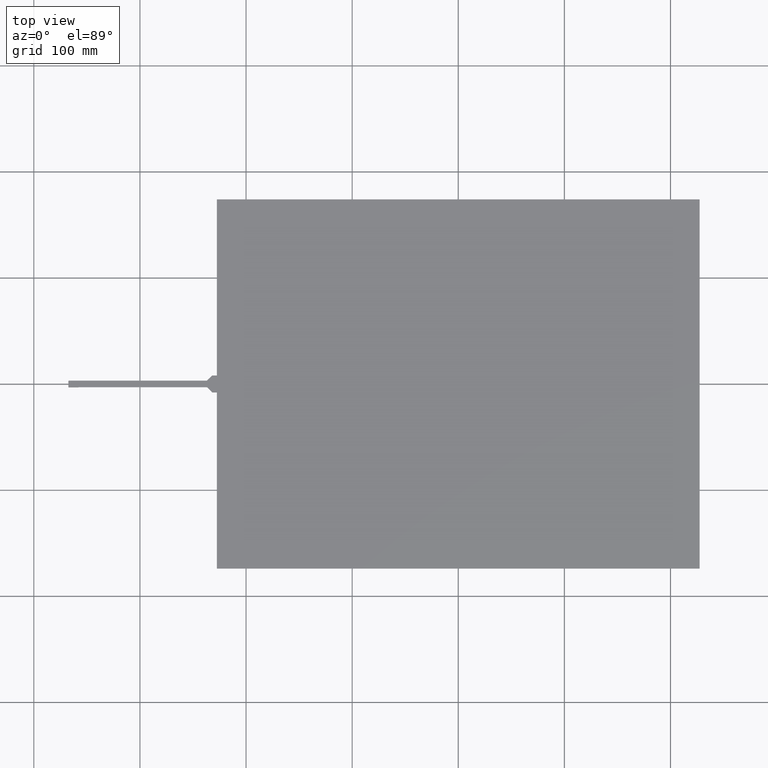
[diagram: clean part render]
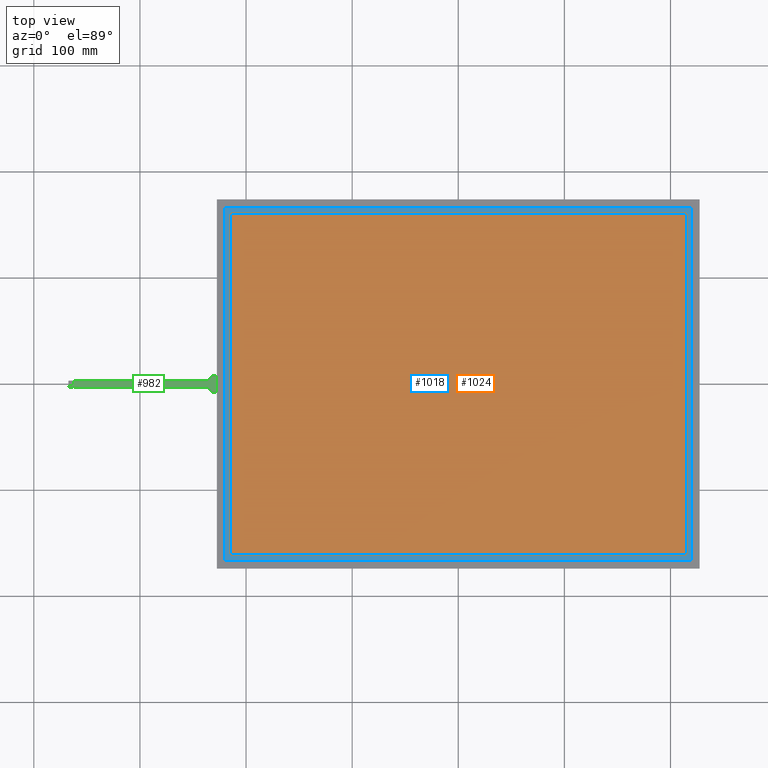
[diagram: same view with three faces highlighted in distinct colors, each labeled with its STEP entity id]
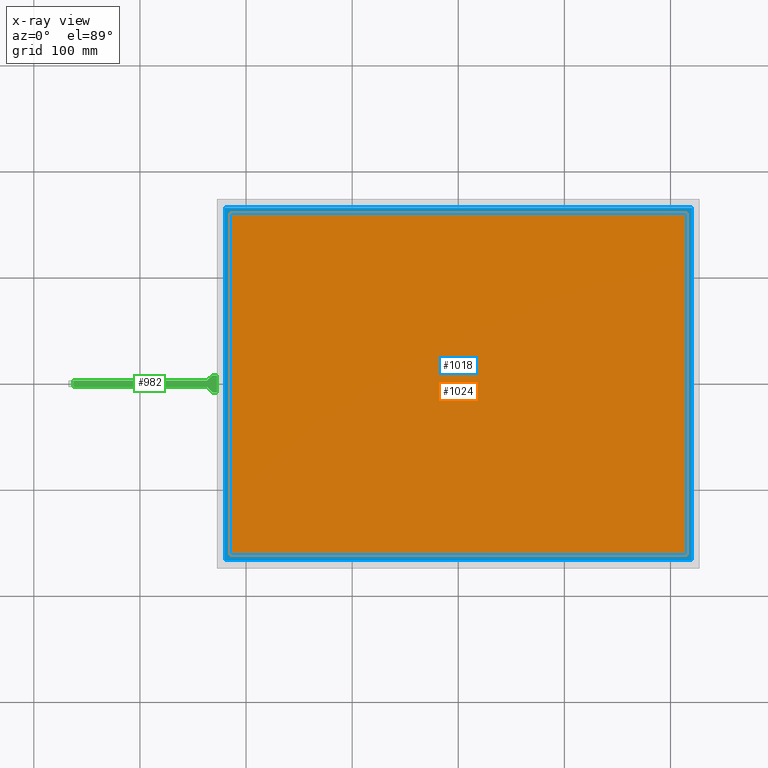
[diagram: x-ray of the same camera — body ghosted, the three highlighted faces saturated]
A machine part, top view with three faces highlighted in distinct colors.
The next image is the same camera in x-ray (body ghosted, the three faces saturated) — at least one of them is partly hidden behind the body in this view.
Their STEP definitions:

[orange] entity #1024 — the highlighted planar face has unit normal (0, 0, 1).
#92=PLANE('',#1107);
#143=FACE_OUTER_BOUND('',#197,.T.);
#197=EDGE_LOOP('',(#961,#962,#963,#964));
#289=LINE('',#1572,#415);
#293=LINE('',#1580,#419);
#296=LINE('',#1586,#422);
#299=LINE('',#1591,#425);
#415=VECTOR('',#1297,10.);
#419=VECTOR('',#1303,10.);
#422=VECTOR('',#1308,10.);
#425=VECTOR('',#1313,10.);
#531=VERTEX_POINT('',#1570);
#532=VERTEX_POINT('',#1571);
#535=VERTEX_POINT('',#1579);
#537=VERTEX_POINT('',#1585);
#657=EDGE_CURVE('',#531,#532,#289,.T.);
#661=EDGE_CURVE('',#535,#531,#293,.T.);
#664=EDGE_CURVE('',#537,#535,#296,.T.);
#667=EDGE_CURVE('',#532,#537,#299,.T.);
#961=ORIENTED_EDGE('',*,*,#657,.T.);
#962=ORIENTED_EDGE('',*,*,#667,.T.);
#963=ORIENTED_EDGE('',*,*,#664,.T.);
#964=ORIENTED_EDGE('',*,*,#661,.T.);
#1024=ADVANCED_FACE('',(#143),#92,.T.);
#1107=AXIS2_PLACEMENT_3D('',#1643,#1359,#1360);
#1297=DIRECTION('',(1.,0.,0.));
#1303=DIRECTION('',(0.,-1.,0.));
#1308=DIRECTION('',(-1.,0.,0.));
#1313=DIRECTION('',(0.,1.,0.));
#1359=DIRECTION('center_axis',(0.,0.,1.));
#1360=DIRECTION('ref_axis',(1.,0.,0.));
#1570=CARTESIAN_POINT('',(-215.,-161.,0.));
#1571=CARTESIAN_POINT('',(215.,-161.,0.));
#1572=CARTESIAN_POINT('',(-107.5,-161.,0.));
#1579=CARTESIAN_POINT('',(-215.,161.,0.));
#1580=CARTESIAN_POINT('',(-215.,80.5,0.));
#1585=CARTESIAN_POINT('',(215.,161.,0.));
#1586=CARTESIAN_POINT('',(107.5,161.,0.));
#1591=CARTESIAN_POINT('',(215.,-80.5,0.));
#1643=CARTESIAN_POINT('Origin',(-5.32907051820075E-14,3.5527136788005E-14,
0.));

[blue] entity #1018 — the highlighted planar face has unit normal (0, 0, -1).
#46=FACE_BOUND('',#189,.T.);
#86=PLANE('',#1101);
#137=FACE_OUTER_BOUND('',#188,.T.);
#188=EDGE_LOOP('',(#925,#926,#927,#928));
#189=EDGE_LOOP('',(#929,#930,#931,#932));
#291=LINE('',#1576,#417);
#295=LINE('',#1583,#421);
#298=LINE('',#1589,#424);
#300=LINE('',#1592,#426);
#303=LINE('',#1600,#429);
#307=LINE('',#1607,#433);
#310=LINE('',#1613,#436);
#312=LINE('',#1616,#438);
#417=VECTOR('',#1299,10.);
#421=VECTOR('',#1305,10.);
#424=VECTOR('',#1310,10.);
#426=VECTOR('',#1314,10.);
#429=VECTOR('',#1319,10.);
#433=VECTOR('',#1325,10.);
#436=VECTOR('',#1330,10.);
#438=VECTOR('',#1334,10.);
#533=VERTEX_POINT('',#1573);
#534=VERTEX_POINT('',#1575);
#536=VERTEX_POINT('',#1581);
#538=VERTEX_POINT('',#1587);
#541=VERTEX_POINT('',#1597);
#542=VERTEX_POINT('',#1599);
#544=VERTEX_POINT('',#1605);
#546=VERTEX_POINT('',#1611);
#659=EDGE_CURVE('',#533,#534,#291,.T.);
#663=EDGE_CURVE('',#536,#533,#295,.T.);
#666=EDGE_CURVE('',#538,#536,#298,.T.);
#668=EDGE_CURVE('',#534,#538,#300,.T.);
#671=EDGE_CURVE('',#541,#542,#303,.T.);
#675=EDGE_CURVE('',#544,#541,#307,.T.);
#678=EDGE_CURVE('',#546,#544,#310,.T.);
#680=EDGE_CURVE('',#542,#546,#312,.T.);
#925=ORIENTED_EDGE('',*,*,#680,.F.);
#926=ORIENTED_EDGE('',*,*,#671,.F.);
#927=ORIENTED_EDGE('',*,*,#675,.F.);
#928=ORIENTED_EDGE('',*,*,#678,.F.);
#929=ORIENTED_EDGE('',*,*,#668,.F.);
#930=ORIENTED_EDGE('',*,*,#659,.F.);
#931=ORIENTED_EDGE('',*,*,#663,.F.);
#932=ORIENTED_EDGE('',*,*,#666,.F.);
#1018=ADVANCED_FACE('',(#137,#46),#86,.F.);
#1101=AXIS2_PLACEMENT_3D('',#1617,#1335,#1336);
#1299=DIRECTION('',(1.,0.,0.));
#1305=DIRECTION('',(0.,-1.,0.));
#1310=DIRECTION('',(-1.,0.,0.));
#1314=DIRECTION('',(0.,1.,0.));
#1319=DIRECTION('',(-2.14018896313283E-16,1.,0.));
#1325=DIRECTION('',(-1.,-1.61413615574762E-16,0.));
#1330=DIRECTION('',(2.14018896313283E-16,-1.,0.));
#1334=DIRECTION('',(1.,0.,0.));
#1335=DIRECTION('center_axis',(0.,0.,-1.));
#1336=DIRECTION('ref_axis',(-1.,0.,0.));
#1573=CARTESIAN_POINT('',(-215.,-161.,-0.1));
#1575=CARTESIAN_POINT('',(215.,-161.,-0.1));
#1576=CARTESIAN_POINT('',(215.,-161.,-0.1));
#1581=CARTESIAN_POINT('',(-215.,161.,-0.1));
#1583=CARTESIAN_POINT('',(-215.,-161.,-0.1));
#1587=CARTESIAN_POINT('',(215.,161.,-0.1));
#1589=CARTESIAN_POINT('',(-215.,161.,-0.1));
#1592=CARTESIAN_POINT('',(215.,161.,-0.1));
#1597=CARTESIAN_POINT('',(-220.1,-166.,-0.1));
#1599=CARTESIAN_POINT('',(-220.1,166.,-0.1));
#1600=CARTESIAN_POINT('',(-220.1,166.,-0.1));
#1605=CARTESIAN_POINT('',(220.1,-166.,-0.1));
#1607=CARTESIAN_POINT('',(-220.1,-166.,-0.1));
#1611=CARTESIAN_POINT('',(220.1,166.,-0.1));
#1613=CARTESIAN_POINT('',(220.1,-166.,-0.1));
#1616=CARTESIAN_POINT('',(220.1,166.,-0.1));
#1617=CARTESIAN_POINT('Origin',(-3.5527136788005E-14,3.5527136788005E-14,
-0.1));

[green] entity #982 — the highlighted planar face has unit normal (0, 0, 1).
#53=PLANE('',#1059);
#101=FACE_OUTER_BOUND('',#152,.T.);
#152=EDGE_LOOP('',(#744,#745,#746,#747,#748,#749,#750,#751,#752,#753,#754,
#755));
#230=LINE('',#1437,#356);
#234=LINE('',#1450,#360);
#235=LINE('',#1454,#361);
#236=LINE('',#1455,#362);
#237=LINE('',#1459,#363);
#238=LINE('',#1463,#364);
#239=LINE('',#1465,#365);
#240=LINE('',#1466,#366);
#356=VECTOR('',#1162,10.);
#360=VECTOR('',#1174,10.);
#361=VECTOR('',#1177,10.);
#362=VECTOR('',#1178,10.);
#363=VECTOR('',#1181,10.);
#364=VECTOR('',#1184,10.);
#365=VECTOR('',#1185,10.);
#366=VECTOR('',#1186,10.);
#456=CIRCLE('',#1058,1.);
#457=CIRCLE('',#1060,1.);
#458=CIRCLE('',#1061,1.);
#459=CIRCLE('',#1062,1.);
#493=VERTEX_POINT('',#1434);
#494=VERTEX_POINT('',#1436);
#497=VERTEX_POINT('',#1443);
#498=VERTEX_POINT('',#1445);
#499=VERTEX_POINT('',#1449);
#500=VERTEX_POINT('',#1451);
#501=VERTEX_POINT('',#1453);
#502=VERTEX_POINT('',#1456);
#503=VERTEX_POINT('',#1458);
#504=VERTEX_POINT('',#1460);
#505=VERTEX_POINT('',#1462);
#506=VERTEX_POINT('',#1464);
#590=EDGE_CURVE('',#494,#493,#230,.T.);
#594=EDGE_CURVE('',#497,#498,#456,.T.);
#596=EDGE_CURVE('',#497,#499,#234,.T.);
#597=EDGE_CURVE('',#500,#499,#457,.T.);
#598=EDGE_CURVE('',#500,#501,#235,.T.);
#599=EDGE_CURVE('',#501,#494,#236,.T.);
#600=EDGE_CURVE('',#502,#493,#458,.T.);
#601=EDGE_CURVE('',#502,#503,#237,.T.);
#602=EDGE_CURVE('',#504,#503,#459,.T.);
#603=EDGE_CURVE('',#504,#505,#238,.T.);
#604=EDGE_CURVE('',#506,#505,#239,.T.);
#605=EDGE_CURVE('',#506,#498,#240,.T.);
#744=ORIENTED_EDGE('',*,*,#594,.F.);
#745=ORIENTED_EDGE('',*,*,#596,.T.);
#746=ORIENTED_EDGE('',*,*,#597,.F.);
#747=ORIENTED_EDGE('',*,*,#598,.T.);
#748=ORIENTED_EDGE('',*,*,#599,.T.);
#749=ORIENTED_EDGE('',*,*,#590,.T.);
#750=ORIENTED_EDGE('',*,*,#600,.F.);
#751=ORIENTED_EDGE('',*,*,#601,.T.);
#752=ORIENTED_EDGE('',*,*,#602,.F.);
#753=ORIENTED_EDGE('',*,*,#603,.T.);
#754=ORIENTED_EDGE('',*,*,#604,.F.);
#755=ORIENTED_EDGE('',*,*,#605,.T.);
#982=ADVANCED_FACE('',(#101),#53,.T.);
#1058=AXIS2_PLACEMENT_3D('',#1446,#1169,#1170);
#1059=AXIS2_PLACEMENT_3D('',#1448,#1172,#1173);
#1060=AXIS2_PLACEMENT_3D('',#1452,#1175,#1176);
#1061=AXIS2_PLACEMENT_3D('',#1457,#1179,#1180);
#1062=AXIS2_PLACEMENT_3D('',#1461,#1182,#1183);
#1162=DIRECTION('',(1.,2.03607345139772E-16,0.));
#1169=DIRECTION('center_axis',(0.,0.,-1.));
#1170=DIRECTION('ref_axis',(-0.376366215351636,0.92647097738779,0.));
#1172=DIRECTION('center_axis',(0.,0.,1.));
#1173=DIRECTION('ref_axis',(1.,0.,0.));
#1174=DIRECTION('',(-0.716696943883791,-0.697384750785127,0.));
#1175=DIRECTION('center_axis',(0.,0.,1.));
#1176=DIRECTION('ref_axis',(0.376366215351639,-0.926470977387788,0.));
#1177=DIRECTION('',(-1.,-6.80075359647875E-17,0.));
#1178=DIRECTION('',(0.,-1.,0.));
#1179=DIRECTION('center_axis',(0.,0.,1.));
#1180=DIRECTION('ref_axis',(0.38898280759881,0.921245013768079,0.));
#1181=DIRECTION('',(0.697384750785127,-0.716696943883791,0.));
#1182=DIRECTION('center_axis',(0.,0.,-1.));
#1183=DIRECTION('ref_axis',(-0.388982807598773,-0.921245013768094,0.));
#1184=DIRECTION('',(1.,2.0231854662873E-15,0.));
#1185=DIRECTION('',(3.0626842058625E-16,-1.,0.));
#1186=DIRECTION('',(-1.,0.,0.));
#1434=CARTESIAN_POINT('',(-237.055873722342,-3.13,-0.2));
#1436=CARTESIAN_POINT('',(-362.5,-3.13000000000002,-0.2));
#1437=CARTESIAN_POINT('',(-367.5,-3.13000000000002,-0.2));
#1443=CARTESIAN_POINT('',(-232.181148371516,7.71169694388382,-0.2));
#1445=CARTESIAN_POINT('',(-231.483763620731,7.995,-0.2));
#1446=CARTESIAN_POINT('Origin',(-231.483763620731,6.995,-0.2));
#1448=CARTESIAN_POINT('Origin',(-297.5,-0.00500000000000722,-0.2));
#1449=CARTESIAN_POINT('',(-236.608851628484,3.40330305611619,-0.2));
#1450=CARTESIAN_POINT('',(-231.89,7.995,-0.2));
#1451=CARTESIAN_POINT('',(-237.306236379269,3.11999999999999,-0.2));
#1452=CARTESIAN_POINT('Origin',(-237.306236379269,4.11999999999999,-0.2));
#1453=CARTESIAN_POINT('',(-362.5,3.11999999999997,-0.2));
#1454=CARTESIAN_POINT('',(-236.9,3.11999999999999,-0.2));
#1455=CARTESIAN_POINT('',(-362.5,1.55749999999998,-0.2));
#1456=CARTESIAN_POINT('',(-236.339176778459,-3.43261524921489,-0.2));
#1457=CARTESIAN_POINT('Origin',(-237.055873722342,-4.13,-0.2));
#1458=CARTESIAN_POINT('',(-232.184460946092,-7.70238475078515,-0.2));
#1459=CARTESIAN_POINT('',(-236.633637724551,-3.13,-0.2));
#1460=CARTESIAN_POINT('',(-231.467764002209,-8.00500000000001,-0.2));
#1461=CARTESIAN_POINT('Origin',(-231.467764002209,-7.00500000000001,-0.2));
#1462=CARTESIAN_POINT('',(-227.5,-8.005,-0.2));
#1463=CARTESIAN_POINT('',(-231.89,-8.00500000000001,-0.2));
#1464=CARTESIAN_POINT('',(-227.5,7.995,-0.2));
#1465=CARTESIAN_POINT('',(-227.5,-87.0025,-0.2));
#1466=CARTESIAN_POINT('',(-227.5,7.995,-0.2));